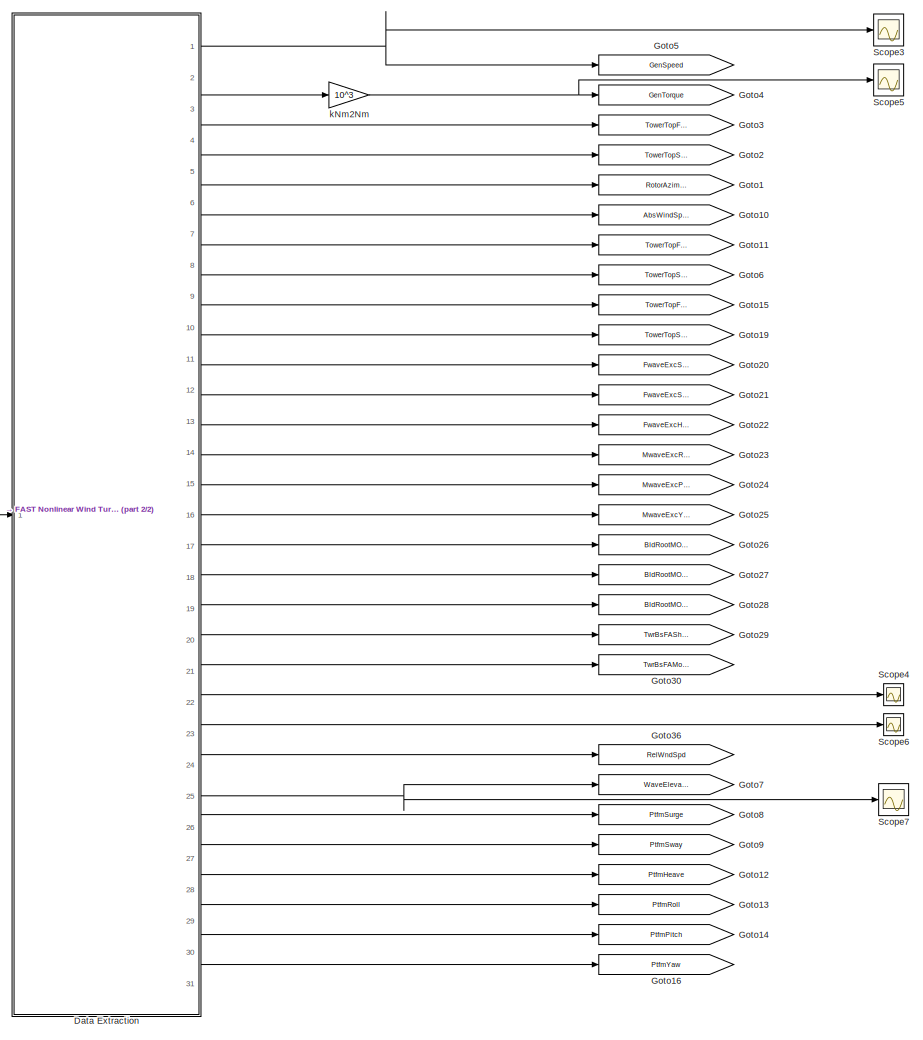
[diagram: root canvas - part 1/2, middle right region]
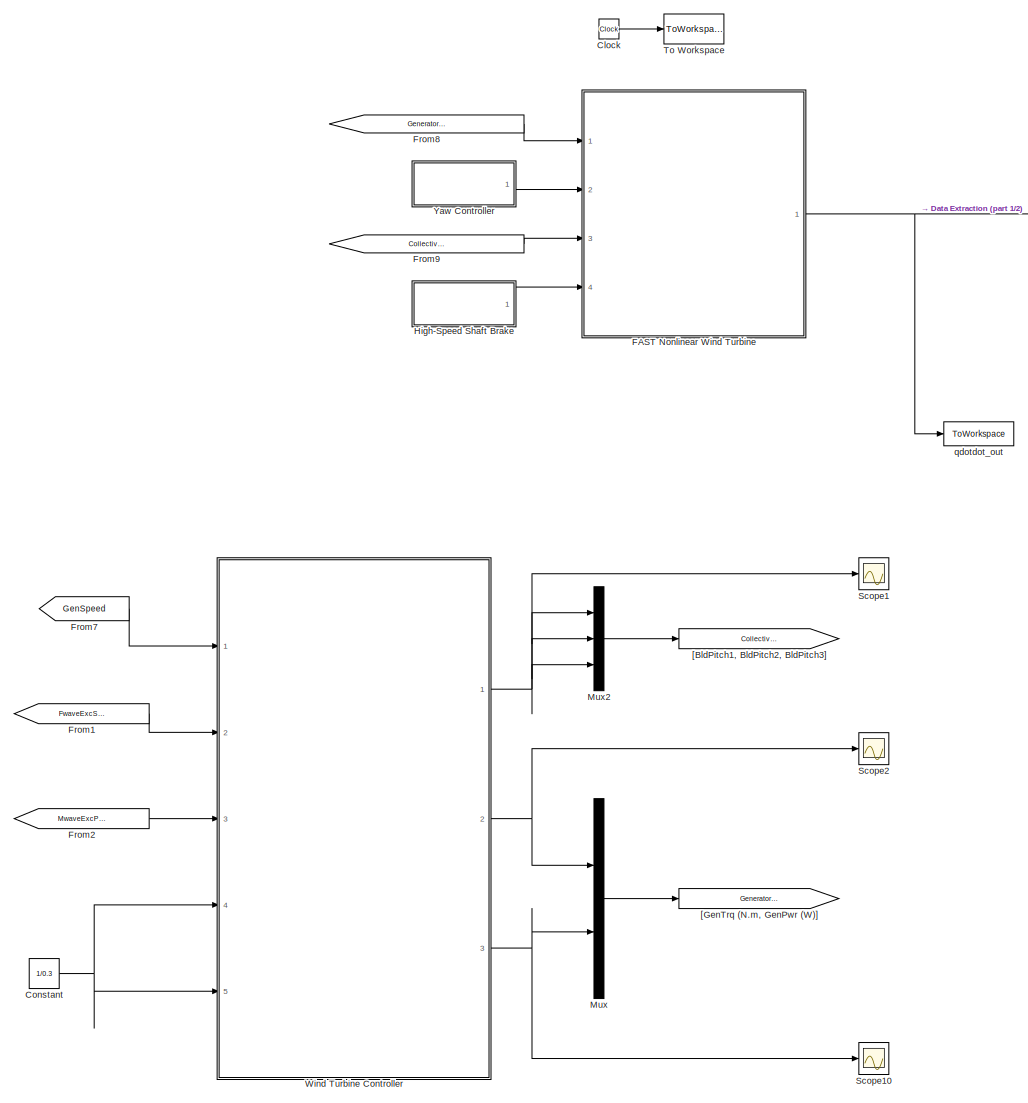
[diagram: root canvas - part 2/2, left side, full height]
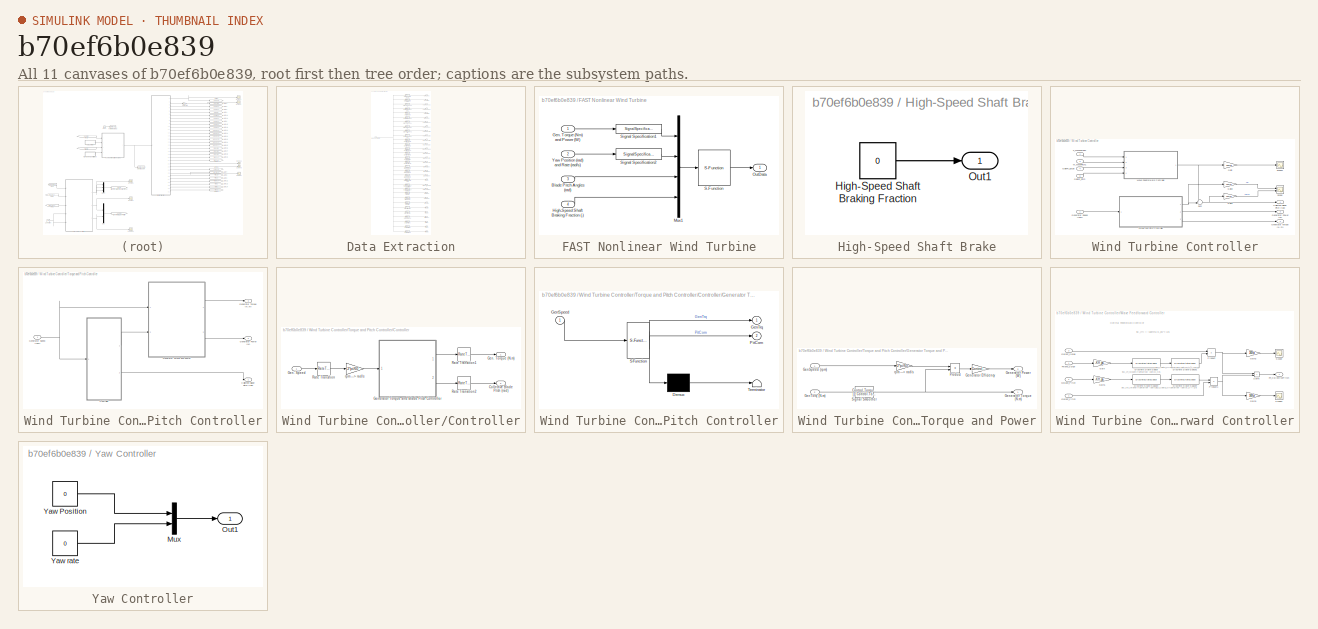
[diagram: thumbnail index - all 11 canvases of the model, root first then tree order]
MODEL slx_b70ef6b0e839
KIND model
CONFIG AbsTol = auto
CONFIG EnableMultiTasking = on
CONFIG FixedStep = Control.TimeStep
CONFIG MaxStep = DT
CONFIG MinStep = auto
CONFIG RelTol = 1e-3
CONFIG SampleTimeConstraint = Unconstrained
CONFIG SolverName = ode4
CONFIG StartTime = 0.0
CONFIG StopTime = TMax
BLOCK [Clock] Clock
BLOCK [Constant] Constant
  Value = 1/0.3
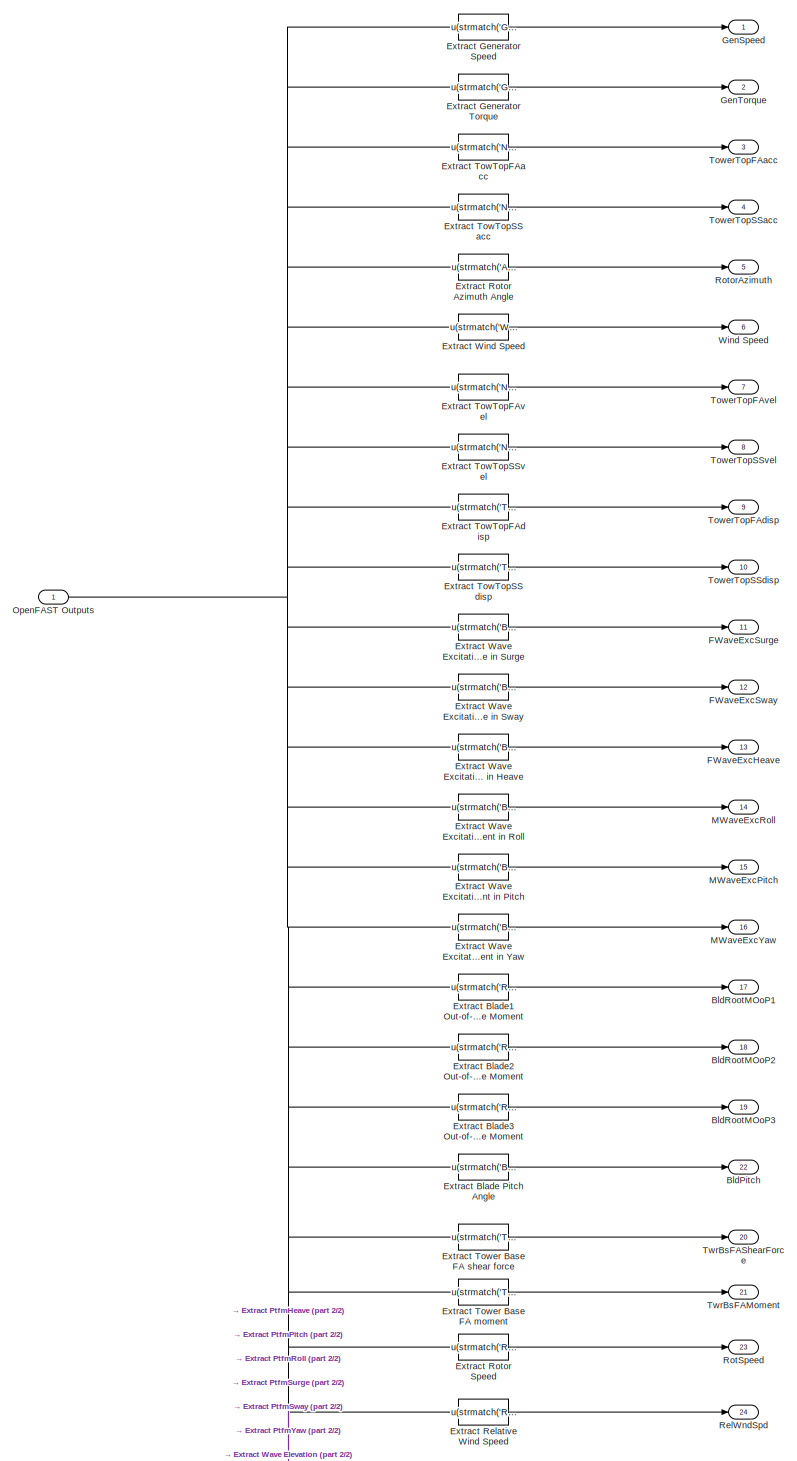
[diagram: Data Extraction - part 1/2, most of the canvas]
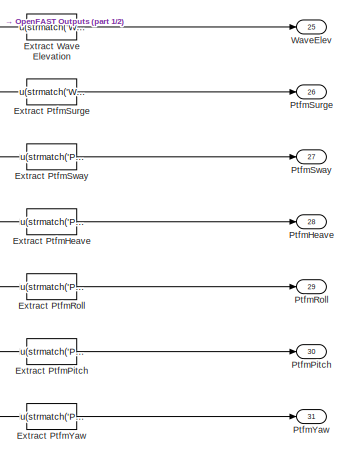
[diagram: Data Extraction - part 2/2, bottom right region]
BLOCK [SubSystem] Data Extraction
  Ports = [1, 31]
  RequestExecContextInheritance = off
BLOCK [Outport] Data Extraction/BldPitch
  Port = 22
BLOCK [Outport] Data Extraction/BldRootMOoP1
  Port = 17
BLOCK [Outport] Data Extraction/BldRootMOoP2
  Port = 18
BLOCK [Outport] Data Extraction/BldRootMOoP3
  Port = 19
BLOCK [Fcn] Data Extraction/Extract Blade Pitch Angle
  Expr = u(strmatch('BldPitch1',OutList))
BLOCK [Fcn] Data Extraction/Extract Blade1 Out-of-Plane Moment
  Expr = u(strmatch('RootMyc1',OutList))
BLOCK [Fcn] Data Extraction/Extract Blade2 Out-of-Plane Moment
  Expr = u(strmatch('RootMyc2',OutList))
BLOCK [Fcn] Data Extraction/Extract Blade3 Out-of-Plane Moment
  Expr = u(strmatch('RootMyc3',OutList))
BLOCK [Fcn] Data Extraction/Extract Generator Speed
  Expr = u(strmatch('GenSpeed',OutList))
BLOCK [Fcn] Data Extraction/Extract Generator Torque
  Expr = u(strmatch('GenTq',OutList))
BLOCK [Fcn] Data Extraction/Extract PtfmHeave
  Expr = u(strmatch('PtfmHeave',OutList))
BLOCK [Fcn] Data Extraction/Extract PtfmPitch
  Expr = u(strmatch('PtfmPitch',OutList))
BLOCK [Fcn] Data Extraction/Extract PtfmRoll
  Expr = u(strmatch('PtfmRoll',OutList))
BLOCK [Fcn] Data Extraction/Extract PtfmSurge
  Expr = u(strmatch('Wave1Elev',OutList))
BLOCK [Fcn] Data Extraction/Extract PtfmSway
  Expr = u(strmatch('PtfmSway',OutList))
BLOCK [Fcn] Data Extraction/Extract PtfmYaw
  Expr = u(strmatch('PtfmYaw',OutList))
BLOCK [Fcn] Data Extraction/Extract Relative Wind Speed
  Expr = u(strmatch('RtVAvgxh',OutList))
BLOCK [Fcn] Data Extraction/Extract Rotor Azimuth Angle
  Expr = u(strmatch('Azimuth',OutList))
BLOCK [Fcn] Data Extraction/Extract Rotor Speed
  Expr = u(strmatch('RotSpeed',OutList))
BLOCK [Fcn] Data Extraction/Extract TowTopFAacc
  Expr = u(strmatch('NcIMUTAxs',OutList))
BLOCK [Fcn] Data Extraction/Extract TowTopFAdisp
  Expr = u(strmatch('TTDspFA',OutList))
BLOCK [Fcn] Data Extraction/Extract TowTopFAvel
  Expr = u(strmatch('NcIMUTVxs',OutList))
BLOCK [Fcn] Data Extraction/Extract TowTopSSacc
  Expr = u(strmatch('NcIMUTAys',OutList))
BLOCK [Fcn] Data Extraction/Extract TowTopSSdisp
  Expr = u(strmatch('TTDspSS',OutList))
BLOCK [Fcn] Data Extraction/Extract TowTopSSvel
  Expr = u(strmatch('NcIMUTVys',OutList))
BLOCK [Fcn] Data Extraction/Extract Tower Base FA moment
  Commented = through
  Expr = u(strmatch('TwrBsMyt',OutList))
BLOCK [Fcn] Data Extraction/Extract Tower Base FA shear force
  Commented = through
  Expr = u(strmatch('TwrBsFxt',OutList))
BLOCK [Fcn] Data Extraction/Extract Wave Elevation
  Expr = u(strmatch('Wave1Elev',OutList))
BLOCK [Fcn] Data Extraction/Extract Wave Excitation Force in Heave
  Expr = u(strmatch('B1WvsFzi',OutList))
BLOCK [Fcn] Data Extraction/Extract Wave Excitation Force in Surge
  Expr = u(strmatch('B1WvsFxi',OutList))
BLOCK [Fcn] Data Extraction/Extract Wave Excitation Force in Sway
  Expr = u(strmatch('B1WvsFyi',OutList))
BLOCK [Fcn] Data Extraction/Extract Wave Excitation Moment in Pitch
  Expr = u(strmatch('B1WvsMyi',OutList))
BLOCK [Fcn] Data Extraction/Extract Wave Excitation Moment in Roll
  Expr = u(strmatch('B1WvsMxi',OutList))
BLOCK [Fcn] Data Extraction/Extract Wave Excitation Moment in Yaw
  Expr = u(strmatch('B1WvsMzi',OutList))
BLOCK [Fcn] Data Extraction/Extract Wind Speed
  Expr = u(strmatch('Wind1VelX',OutList))
BLOCK [Outport] Data Extraction/FWaveExcHeave
  Port = 13
BLOCK [Outport] Data Extraction/FWaveExcSurge
  Port = 11
BLOCK [Outport] Data Extraction/FWaveExcSway
  Port = 12
BLOCK [Outport] Data Extraction/GenSpeed
BLOCK [Outport] Data Extraction/GenTorque
  Port = 2
BLOCK [Outport] Data Extraction/MWaveExcPitch
  Port = 15
BLOCK [Outport] Data Extraction/MWaveExcRoll
  Port = 14
BLOCK [Outport] Data Extraction/MWaveExcYaw
  Port = 16
BLOCK [Inport] Data Extraction/OpenFAST Outputs
BLOCK [Outport] Data Extraction/PtfmHeave
  Port = 28
BLOCK [Outport] Data Extraction/PtfmPitch
  Port = 30
BLOCK [Outport] Data Extraction/PtfmRoll
  Port = 29
BLOCK [Outport] Data Extraction/PtfmSurge
  Port = 26
BLOCK [Outport] Data Extraction/PtfmSway
  Port = 27
BLOCK [Outport] Data Extraction/PtfmYaw
  Port = 31
BLOCK [Outport] Data Extraction/RelWndSpd
  Port = 24
BLOCK [Outport] Data Extraction/RotSpeed
  Port = 23
BLOCK [Outport] Data Extraction/RotorAzimuth
  Port = 5
BLOCK [Outport] Data Extraction/TowerTopFAacc
  Port = 3
BLOCK [Outport] Data Extraction/TowerTopFAdisp
  Port = 9
BLOCK [Outport] Data Extraction/TowerTopFAvel
  Port = 7
BLOCK [Outport] Data Extraction/TowerTopSSacc
  Port = 4
BLOCK [Outport] Data Extraction/TowerTopSSdisp
  Port = 10
BLOCK [Outport] Data Extraction/TowerTopSSvel
  Port = 8
BLOCK [Outport] Data Extraction/TwrBsFAMoment
  Port = 21
BLOCK [Outport] Data Extraction/TwrBsFAShearForce
  Port = 20
BLOCK [Outport] Data Extraction/WaveElev
  Port = 25
BLOCK [Outport] Data Extraction/Wind Speed
  Port = 6
BLOCK [SubSystem] FAST Nonlinear Wind Turbine
  Ports = [4, 1]
  RequestExecContextInheritance = off
BLOCK [Inport] FAST Nonlinear Wind Turbine/Blade Pitch Angles (rad)
  Port = 3
BLOCK [Inport] FAST Nonlinear Wind Turbine/Gen. Torque (Nm) and Power (W)
BLOCK [Inport] FAST Nonlinear Wind Turbine/High-Speed Shaft Braking Fraction (-)
  Port = 4
BLOCK [Mux] FAST Nonlinear Wind Turbine/Mux1
  DisplayOption = bar
  Ports = [4, 1]
BLOCK [Outport] FAST Nonlinear Wind Turbine/OutData
BLOCK [S-Function] FAST Nonlinear Wind Turbine/S-Function
  EnableBusSupport = off
  FunctionName = FAST_SFunc
  Parameters = FAST_InputFileName, TMax, 0
  Ports = [1, 1]
  SFcnIsStateOwnerBlock = off
  SFunctionDeploymentMode = off
BLOCK [SignalSpecification] FAST Nonlinear Wind Turbine/Signal Specification1
  Dimensions = 2
  OutDataTypeStr = double
  SignalType = real
BLOCK [SignalSpecification] FAST Nonlinear Wind Turbine/Signal Specification2
  Dimensions = 2
  OutDataTypeStr = double
  SignalType = real
BLOCK [Inport] FAST Nonlinear Wind Turbine/Yaw Position (rad) and Rate (rad//s)
  Port = 2
BLOCK [From] From1
  GotoTag = FwaveExcSurge
BLOCK [From] From2
  GotoTag = MwaveExcPitch
BLOCK [From] From7
  GotoTag = GenSpeed
BLOCK [From] From8
  GotoTag = Generator_Torque_Power
BLOCK [From] From9
  GotoTag = Collective_Pitch_Vector
BLOCK [Goto] Goto1
  GotoTag = RotorAzimuth
BLOCK [Goto] Goto10
  GotoTag = AbsWindSpeed
BLOCK [Goto] Goto11
  GotoTag = TowerTopFAvel
BLOCK [Goto] Goto12
  GotoTag = PtfmHeave
BLOCK [Goto] Goto13
  GotoTag = PtfmRoll
BLOCK [Goto] Goto14
  GotoTag = PtfmPitch
BLOCK [Goto] Goto15
  GotoTag = TowerTopFAdisp
BLOCK [Goto] Goto16
  GotoTag = PtfmYaw
BLOCK [Goto] Goto19
  GotoTag = TowerTopSSdisp
BLOCK [Goto] Goto2
  GotoTag = TowerTopSSacc
BLOCK [Goto] Goto20
  GotoTag = FwaveExcSurge
BLOCK [Goto] Goto21
  GotoTag = FwaveExcSway
BLOCK [Goto] Goto22
  GotoTag = FwaveExcHeave
BLOCK [Goto] Goto23
  GotoTag = MwaveExcRoll
BLOCK [Goto] Goto24
  GotoTag = MwaveExcPitch
BLOCK [Goto] Goto25
  GotoTag = MwaveExcYaw
BLOCK [Goto] Goto26
  GotoTag = BldRootMOoP1
BLOCK [Goto] Goto27
  GotoTag = BldRootMOoP2
BLOCK [Goto] Goto28
  GotoTag = BldRootMOoP3
BLOCK [Goto] Goto29
  GotoTag = TwrBsFAShearForce
BLOCK [Goto] Goto3
  GotoTag = TowerTopFAacc
BLOCK [Goto] Goto30
  GotoTag = TwrBsFAMoment
BLOCK [Goto] Goto36
  GotoTag = RelWndSpd
BLOCK [Goto] Goto4
  GotoTag = GenTorque
BLOCK [Goto] Goto5
  GotoTag = GenSpeed
BLOCK [Goto] Goto6
  GotoTag = TowerTopSSvel
BLOCK [Goto] Goto7
  GotoTag = WaveElevation
BLOCK [Goto] Goto8
  GotoTag = PtfmSurge
BLOCK [Goto] Goto9
  GotoTag = PtfmSway
BLOCK [SubSystem] High-Speed Shaft Brake
  Ports = [0, 1]
  RequestExecContextInheritance = off
BLOCK [Constant] High-Speed Shaft Brake/High-Speed Shaft Braking Fraction
  Value = 0
BLOCK [Outport] High-Speed Shaft Brake/Out1
BLOCK [Mux] Mux
  DisplayOption = bar
  Inputs = 2
  Ports = [2, 1]
BLOCK [Mux] Mux2
  DisplayOption = bar
  Inputs = 3
  Ports = [3, 1]
BLOCK [Scope] Scope1
  Floating = off
  NumInputPorts = 1
  Ports = [1]
  ScopeSpecificationString = Simulink.scopes.TimeScopeBlockCfg('CurrentConfiguration', extmgr.ConfigurationSet(extmgr.Configuration('Core','General UI',true),extmgr.Configuration('Core','Source UI',true),extmgr.Configuration('Sources','WiredSimulink',true,'DataLoggingVariableName','ScopeData1'),extmgr.Configuration('Visuals','Time Domain',true,'SerializedDisplays',{struct('MinYLimReal','-0.02717','MaxYLimReal','0.24455','YLab...<+1409ch>
BLOCK [Scope] Scope10
  Floating = off
  NumInputPorts = 1
  Ports = [1]
  ScopeSpecificationString = Simulink.scopes.TimeScopeBlockCfg('CurrentConfiguration', extmgr.ConfigurationSet(extmgr.Configuration('Core','General UI',true),extmgr.Configuration('Core','Source UI',true),extmgr.Configuration('Sources','WiredSimulink',true,'DataLoggingVariableName','ScopeData3'),extmgr.Configuration('Visuals','Time Domain',true,'SerializedDisplays',{struct('MinYLimReal','-778035.1067','MaxYLimReal','7002315.96...<+1476ch>
BLOCK [Scope] Scope2
  Floating = off
  NumInputPorts = 1
  Ports = [1]
  ScopeSpecificationString = Simulink.scopes.TimeScopeBlockCfg('CurrentConfiguration', extmgr.ConfigurationSet(extmgr.Configuration('Core','General UI',true),extmgr.Configuration('Core','Source UI',true),extmgr.Configuration('Sources','WiredSimulink',true,'DataLoggingVariableName','ScopeData2'),extmgr.Configuration('Visuals','Time Domain',true,'SerializedDisplays',{struct('MinYLimReal','-0.047','MaxYLimReal','0.423','YLabelRe...<+1397ch>
BLOCK [Scope] Scope3
  Floating = off
  NumInputPorts = 1
  Ports = [1]
  ScopeSpecificationString = Simulink.scopes.TimeScopeBlockCfg('CurrentConfiguration', extmgr.ConfigurationSet(extmgr.Configuration('Core','General UI',true),extmgr.Configuration('Core','Source UI',true),extmgr.Configuration('Sources','WiredSimulink',true,'DataLoggingVariableName','ScopeData1'),extmgr.Configuration('Visuals','Time Domain',true,'SerializedDisplays',{struct('MinYLimReal','700.35698','MaxYLimReal','1905.20393','...<+1446ch>
BLOCK [Scope] Scope4
  Floating = off
  NumInputPorts = 1
  Ports = [1]
  ScopeSpecificationString = Simulink.scopes.TimeScopeBlockCfg('CurrentConfiguration', extmgr.ConfigurationSet(extmgr.Configuration('Core','General UI',true),extmgr.Configuration('Core','Source UI',true),extmgr.Configuration('Sources','WiredSimulink',true,'DataLoggingVariableName','ScopeData3'),extmgr.Configuration('Visuals','Time Domain',true,'SerializedDisplays',{struct('MinYLimReal','-1.59515','MaxYLimReal','14.35633','YLa...<+1461ch>
BLOCK [Scope] Scope5
  Floating = off
  NumInputPorts = 1
  Ports = [1]
  ScopeSpecificationString = Simulink.scopes.TimeScopeBlockCfg('CurrentConfiguration', extmgr.ConfigurationSet(extmgr.Configuration('Core','General UI',true),extmgr.Configuration('Core','Source UI',true),extmgr.Configuration('Sources','WiredSimulink',true,'DataLoggingVariableName','ScopeData1'),extmgr.Configuration('Visuals','Time Domain',true,'SerializedDisplays',{struct('MinYLimReal','-5681.27775','MaxYLimReal','51131.49977...<+1443ch>
BLOCK [Scope] Scope6
  Floating = off
  NumInputPorts = 1
  Ports = [1]
  ScopeSpecificationString = Simulink.scopes.TimeScopeBlockCfg('CurrentConfiguration', extmgr.ConfigurationSet(extmgr.Configuration('Core','General UI',true),extmgr.Configuration('Core','Source UI',true),extmgr.Configuration('Sources','WiredSimulink',true,'DataLoggingVariableName','ScopeData2'),extmgr.Configuration('Visuals','Time Domain',true,'SerializedDisplays',{struct('MinYLimReal','10.22804','MaxYLimReal','15.56446','YLa...<+1465ch>
BLOCK [Scope] Scope7
  Floating = off
  NumInputPorts = 1
  Ports = [1]
  ScopeSpecificationString = Simulink.scopes.TimeScopeBlockCfg('CurrentConfiguration', extmgr.ConfigurationSet(extmgr.Configuration('Core','General UI',true),extmgr.Configuration('Core','Source UI',true),extmgr.Configuration('Sources','WiredSimulink',true,'DataLoggingVariableName','ScopeData1'),extmgr.Configuration('Visuals','Time Domain',true,'SerializedDisplays',{struct('MinYLimReal','-1.91621','MaxYLimReal','2.11644','YLab...<+1430ch>
BLOCK [ToWorkspace] To Workspace
  MaxDataPoints = inf
  Ports = [1]
  SampleTime = -1
  VariableName = Time
BLOCK [SubSystem] Wind Turbine Controller
  Ports = [5, 3]
  RequestExecContextInheritance = off
BLOCK [Outport] Wind Turbine Controller/ Collective Blade Pitch (rad)
BLOCK [Inport] Wind Turbine Controller/F_WaveSurge1
  Port = 2
BLOCK [Gain] Wind Turbine Controller/Gain
  Gain = 180/pi
BLOCK [Gain] Wind Turbine Controller/Gain1
  Gain = 180/pi
BLOCK [Gain] Wind Turbine Controller/Gain2
  Gain = 180/pi
BLOCK [Inport] Wind Turbine Controller/GainFF_Pitch
  Port = 5
  PortDimensions = 1
  SignalType = real
BLOCK [Inport] Wind Turbine Controller/GainFF_Surge
  Port = 4
  PortDimensions = 1
  SignalType = real
BLOCK [Outport] Wind Turbine Controller/Generator Power (W)
  Port = 3
BLOCK [Inport] Wind Turbine Controller/Generator Speed (rpm)
BLOCK [Outport] Wind Turbine Controller/Generator Torque (N.m)
  Port = 2
BLOCK [Inport] Wind Turbine Controller/M_WavePitch1
  Port = 3
BLOCK [Scope] Wind Turbine Controller/Scope
  Floating = off
  NumInputPorts = 2
  Ports = [2]
  ScopeSpecificationString = Simulink.scopes.TimeScopeBlockCfg('CurrentConfiguration', extmgr.ConfigurationSet(extmgr.Configuration('Core','General UI',true),extmgr.Configuration('Core','Source UI',true),extmgr.Configuration('Sources','WiredSimulink',true,'DataLoggingVariableName','ScopeData1'),extmgr.Configuration('Visuals','Time Domain',true,'SerializedDisplays',{struct('MinYLimReal','-1.55326','MaxYLimReal','13.97936','YLa...<+1413ch>
BLOCK [Scope] Wind Turbine Controller/Scope1
  Floating = off
  NumInputPorts = 1
  Ports = [1]
  ScopeSpecificationString = Simulink.scopes.TimeScopeBlockCfg('CurrentConfiguration', extmgr.ConfigurationSet(extmgr.Configuration('Core','General UI',true),extmgr.Configuration('Core','Source UI',true),extmgr.Configuration('Sources','WiredSimulink',true,'DataLoggingVariableName','ScopeData2'),extmgr.Configuration('Visuals','Time Domain',true,'SerializedDisplays',{struct('MinYLimReal','-1.00000','MaxYLimReal','1.00000','YLab...<+1388ch>
BLOCK [Sum] Wind Turbine Controller/Sum
  Inputs = ++|
  Ports = [2, 1]
BLOCK [SubSystem] Wind Turbine Controller/Torque and Pitch Controller
  Ports = [1, 3]
  RequestExecContextInheritance = off
BLOCK [Outport] Wind Turbine Controller/Torque and Pitch Controller/ Collective Blade Pitch (rad)
BLOCK [SubSystem] Wind Turbine Controller/Torque and Pitch Controller/Controller
  Ports = [1, 2]
  RequestExecContextInheritance = off
BLOCK [Outport] Wind Turbine Controller/Torque and Pitch Controller/Controller/Collective Blade Pitch (rad)
  Port = 2
BLOCK [Inport] Wind Turbine Controller/Torque and Pitch Controller/Controller/Gen. Speed
BLOCK [Outport] Wind Turbine Controller/Torque and Pitch Controller/Controller/Gen. Torque (N.m)
BLOCK [SubSystem] Wind Turbine Controller/Torque and Pitch Controller/Controller/Generator Torque and Blade Pitch Controller
  ErrorFcn = Stateflow.Translate.translate
  PermitHierarchicalResolution = ExplicitOnly
  Ports = [1, 2]
  RequestExecContextInheritance = off
  SFBlockType = MATLAB Function
  TreatAsAtomicUnit = on
BLOCK [Demux] Wind Turbine Controller/Torque and Pitch Controller/Controller/Generator Torque and Blade Pitch Controller/ Demux 
  Outputs = 1
  Ports = [1, 1]
BLOCK [S-Function] Wind Turbine Controller/Torque and Pitch Controller/Controller/Generator Torque and Blade Pitch Controller/ SFunction 
  EnableBusSupport = on
  FunctionName = sf_sfun
  Parameters = Control
  PortCounts = [1 3]
  Ports = [1, 3]
  SFcnIsStateOwnerBlock = off
  SFunctionDeploymentMode = off
  Tag = Stateflow S-Function 16
BLOCK [Terminator] Wind Turbine Controller/Torque and Pitch Controller/Controller/Generator Torque and Blade Pitch Controller/ Terminator 
BLOCK [Inport] Wind Turbine Controller/Torque and Pitch Controller/Controller/Generator Torque and Blade Pitch Controller/GenSpeed
BLOCK [Outport] Wind Turbine Controller/Torque and Pitch Controller/Controller/Generator Torque and Blade Pitch Controller/GenTrq
BLOCK [Outport] Wind Turbine Controller/Torque and Pitch Controller/Controller/Generator Torque and Blade Pitch Controller/PitCom
  Port = 2
BLOCK [RateTransition] Wind Turbine Controller/Torque and Pitch Controller/Controller/Rate Transition
BLOCK [RateTransition] Wind Turbine Controller/Torque and Pitch Controller/Controller/Rate Transition1
BLOCK [RateTransition] Wind Turbine Controller/Torque and Pitch Controller/Controller/Rate Transition2
BLOCK [Gain] Wind Turbine Controller/Torque and Pitch Controller/Controller/rpm ---> rad//s
  Gain = 2*pi/60
BLOCK [Outport] Wind Turbine Controller/Torque and Pitch Controller/Generator Power (W)
  Port = 2
BLOCK [Inport] Wind Turbine Controller/Torque and Pitch Controller/Generator Speed (rpm)
BLOCK [Outport] Wind Turbine Controller/Torque and Pitch Controller/Generator Torque (N.m)
  Port = 3
BLOCK [SubSystem] Wind Turbine Controller/Torque and Pitch Controller/Generator Torque and Power
  Ports = [2, 2]
  RequestExecContextInheritance = off
BLOCK [Inport] Wind Turbine Controller/Torque and Pitch Controller/Generator Torque and Power/GenSpeed (rpm)
BLOCK [Inport] Wind Turbine Controller/Torque and Pitch Controller/Generator Torque and Power/GenTorq (N.m)
  Port = 2
BLOCK [Gain] Wind Turbine Controller/Torque and Pitch Controller/Generator Torque and Power/Generator Efficiency
  Gain = Control.Torque.GenEffec
BLOCK [Outport] Wind Turbine Controller/Torque and Pitch Controller/Generator Torque and Power/Generator Power (W)
  Port = 2
BLOCK [Outport] Wind Turbine Controller/Torque and Pitch Controller/Generator Torque and Power/Generator Torque (N.m)
BLOCK [Product] Wind Turbine Controller/Torque and Pitch Controller/Generator Torque and Power/Product
  Ports = [2, 1]
BLOCK [TransferFcn] Wind Turbine Controller/Torque and Pitch Controller/Generator Torque and Power/Signal Smoother
  Denominator = [1 Control.Torque.SigSmoother]
  Numerator = Control.Torque.SigSmoother
BLOCK [Gain] Wind Turbine Controller/Torque and Pitch Controller/Generator Torque and Power/rpm ---> rad//s
  Gain = 2*pi/60
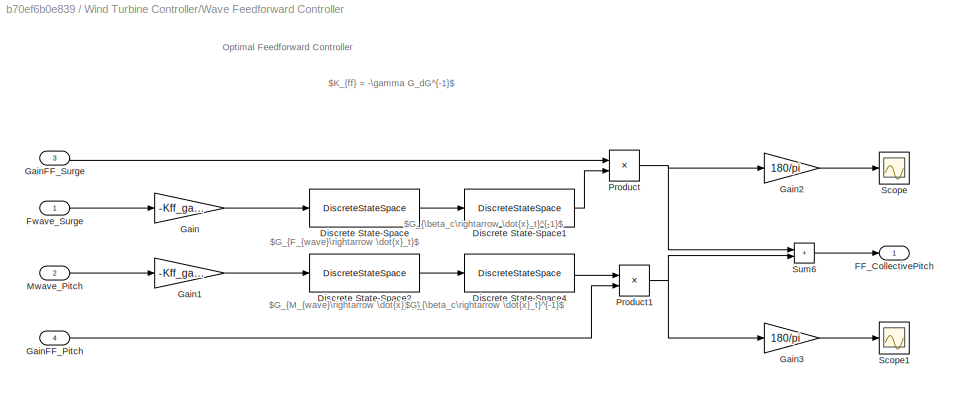
BLOCK [SubSystem] Wind Turbine Controller/Wave Feedforward Controller
  Ports = [4, 1]
  RequestExecContextInheritance = off
BLOCK [DiscreteStateSpace] Wind Turbine Controller/Wave Feedforward Controller/Discrete State-Space
  A = Gd_Fwave.A
  B = Gd_Fwave.B
  C = Gd_Fwave.C
  D = Gd_Fwave.D
  SampleTime = Control.TimeStep
BLOCK [DiscreteStateSpace] Wind Turbine Controller/Wave Feedforward Controller/Discrete State-Space1
  A = InvGp.A
  B = InvGp.B
  C = InvGp.C
  D = InvGp.D
  SampleTime = Control.TimeStep
BLOCK [DiscreteStateSpace] Wind Turbine Controller/Wave Feedforward Controller/Discrete State-Space2
  A = Gd_Mwave.A
  B = Gd_Mwave.B
  C = Gd_Mwave.C
  D = Gd_Mwave.D
  SampleTime = Control.TimeStep
BLOCK [DiscreteStateSpace] Wind Turbine Controller/Wave Feedforward Controller/Discrete State-Space4
  A = InvGp.A
  B = InvGp.B
  C = InvGp.C
  D = InvGp.D
  SampleTime = Control.TimeStep
BLOCK [Outport] Wind Turbine Controller/Wave Feedforward Controller/FF_CollectivePitch
BLOCK [Inport] Wind Turbine Controller/Wave Feedforward Controller/Fwave_Surge
BLOCK [Gain] Wind Turbine Controller/Wave Feedforward Controller/Gain
  Gain = -Kff_gain
BLOCK [Gain] Wind Turbine Controller/Wave Feedforward Controller/Gain1
  Gain = -Kff_gain
BLOCK [Gain] Wind Turbine Controller/Wave Feedforward Controller/Gain2
  Gain = 180/pi
BLOCK [Gain] Wind Turbine Controller/Wave Feedforward Controller/Gain3
  Gain = 180/pi
BLOCK [Inport] Wind Turbine Controller/Wave Feedforward Controller/GainFF_Pitch
  Port = 4
  PortDimensions = 1
  SignalType = real
BLOCK [Inport] Wind Turbine Controller/Wave Feedforward Controller/GainFF_Surge
  Port = 3
  PortDimensions = 1
  SignalType = real
BLOCK [Inport] Wind Turbine Controller/Wave Feedforward Controller/Mwave_Pitch
  Port = 2
BLOCK [Product] Wind Turbine Controller/Wave Feedforward Controller/Product
  Ports = [2, 1]
BLOCK [Product] Wind Turbine Controller/Wave Feedforward Controller/Product1
  Ports = [2, 1]
BLOCK [Scope] Wind Turbine Controller/Wave Feedforward Controller/Scope
  Floating = off
  NumInputPorts = 1
  Ports = [1]
  ScopeSpecificationString = Simulink.scopes.TimeScopeBlockCfg('CurrentConfiguration', extmgr.ConfigurationSet(extmgr.Configuration('Core','General UI',true),extmgr.Configuration('Core','Source UI',true),extmgr.Configuration('Sources','WiredSimulink',true,'DataLoggingVariableName','ScopeData1'),extmgr.Configuration('Visuals','Time Domain',true),extmgr.Configuration('Tools','Plot Navigation',true),extmgr.Configuration('Tools',...<+58ch>
BLOCK [Scope] Wind Turbine Controller/Wave Feedforward Controller/Scope1
  Floating = off
  NumInputPorts = 1
  Ports = [1]
  ScopeSpecificationString = Simulink.scopes.TimeScopeBlockCfg('CurrentConfiguration', extmgr.ConfigurationSet(extmgr.Configuration('Core','General UI',true),extmgr.Configuration('Core','Source UI',true),extmgr.Configuration('Sources','WiredSimulink',true,'DataLoggingVariableName','ScopeData2'),extmgr.Configuration('Visuals','Time Domain',true),extmgr.Configuration('Tools','Plot Navigation',true),extmgr.Configuration('Tools',...<+40ch>
BLOCK [Sum] Wind Turbine Controller/Wave Feedforward Controller/Sum6
  IconShape = rectangular
  Ports = [2, 1]
BLOCK [SubSystem] Yaw Controller
  Ports = [0, 1]
  RequestExecContextInheritance = off
BLOCK [Mux] Yaw Controller/Mux
  DisplayOption = bar
  Inputs = 2
  Ports = [2, 1]
BLOCK [Outport] Yaw Controller/Out1
BLOCK [Constant] Yaw Controller/Yaw Position
  Value = 0
BLOCK [Constant] Yaw Controller/Yaw rate
  Value = 0
BLOCK [Goto] [BldPitch1, BldPitch2, BldPitch3]
  GotoTag = Collective_Pitch_Vector
BLOCK [Goto] [GenTrq (N.m, GenPwr (W)]
  GotoTag = Generator_Torque_Power
BLOCK [Gain] kNm2Nm
  Gain = 10^3
BLOCK [ToWorkspace] qdotdot_out
  MaxDataPoints = inf
  Ports = [1]
  SampleTime = -1
  VariableName = OutData
ANNOTATION Wind Turbine Controller/Wave Feedforward Controller: Optimal Feedforward Controller
ANNOTATION Wind Turbine Controller/Wave Feedforward Controller: $G_{F_{wave}\rightarrow \dot{x}_t}$
ANNOTATION Wind Turbine Controller/Wave Feedforward Controller: $G_{M_{wave}\rightarrow \dot{x}_t}$
ANNOTATION Wind Turbine Controller/Wave Feedforward Controller: $G_{\beta_c\rightarrow \dot{x}_t}^{-1}$
ANNOTATION Wind Turbine Controller/Wave Feedforward Controller: $K_{ff} = -\gamma G_dG^{-1}$
LINE Clock:1 -> To Workspace:1
NET Constant:1 -> Wind Turbine Controller:4, Wind Turbine Controller:5
LINE Data Extraction/Extract Blade Pitch Angle:1 -> Data Extraction/BldPitch:1
LINE Data Extraction/Extract Blade1 Out-of-Plane Moment:1 -> Data Extraction/BldRootMOoP1:1
LINE Data Extraction/Extract Blade2 Out-of-Plane Moment:1 -> Data Extraction/BldRootMOoP2:1
LINE Data Extraction/Extract Blade3 Out-of-Plane Moment:1 -> Data Extraction/BldRootMOoP3:1
LINE Data Extraction/Extract Generator Speed:1 -> Data Extraction/GenSpeed:1
LINE Data Extraction/Extract Generator Torque:1 -> Data Extraction/GenTorque:1
LINE Data Extraction/Extract PtfmHeave:1 -> Data Extraction/PtfmHeave:1
LINE Data Extraction/Extract PtfmPitch:1 -> Data Extraction/PtfmPitch:1
LINE Data Extraction/Extract PtfmRoll:1 -> Data Extraction/PtfmRoll:1
LINE Data Extraction/Extract PtfmSurge:1 -> Data Extraction/PtfmSurge:1
LINE Data Extraction/Extract PtfmSway:1 -> Data Extraction/PtfmSway:1
LINE Data Extraction/Extract PtfmYaw:1 -> Data Extraction/PtfmYaw:1
LINE Data Extraction/Extract Relative Wind Speed:1 -> Data Extraction/RelWndSpd:1
LINE Data Extraction/Extract Rotor Azimuth Angle:1 -> Data Extraction/RotorAzimuth:1
LINE Data Extraction/Extract Rotor Speed:1 -> Data Extraction/RotSpeed:1
LINE Data Extraction/Extract TowTopFAacc:1 -> Data Extraction/TowerTopFAacc:1
LINE Data Extraction/Extract TowTopFAdisp:1 -> Data Extraction/TowerTopFAdisp:1
LINE Data Extraction/Extract TowTopFAvel:1 -> Data Extraction/TowerTopFAvel:1
LINE Data Extraction/Extract TowTopSSacc:1 -> Data Extraction/TowerTopSSacc:1
LINE Data Extraction/Extract TowTopSSdisp:1 -> Data Extraction/TowerTopSSdisp:1
LINE Data Extraction/Extract TowTopSSvel:1 -> Data Extraction/TowerTopSSvel:1
LINE Data Extraction/Extract Tower Base FA moment:1 -> Data Extraction/TwrBsFAMoment:1
LINE Data Extraction/Extract Tower Base FA shear force:1 -> Data Extraction/TwrBsFAShearForce:1
LINE Data Extraction/Extract Wave Elevation:1 -> Data Extraction/WaveElev:1
LINE Data Extraction/Extract Wave Excitation Force in Heave:1 -> Data Extraction/FWaveExcHeave:1
LINE Data Extraction/Extract Wave Excitation Force in Surge:1 -> Data Extraction/FWaveExcSurge:1
LINE Data Extraction/Extract Wave Excitation Force in Sway:1 -> Data Extraction/FWaveExcSway:1
LINE Data Extraction/Extract Wave Excitation Moment in Pitch:1 -> Data Extraction/MWaveExcPitch:1
LINE Data Extraction/Extract Wave Excitation Moment in Roll:1 -> Data Extraction/MWaveExcRoll:1
LINE Data Extraction/Extract Wave Excitation Moment in Yaw:1 -> Data Extraction/MWaveExcYaw:1
LINE Data Extraction/Extract Wind Speed:1 -> Data Extraction/Wind Speed:1
NET Data Extraction/OpenFAST Outputs:1 -> Data Extraction/Extract Blade Pitch Angle:1, Data Extraction/Extract Blade1 Out-of-Plane Moment:1, Data Extraction/Extract Blade2 Out-of-Plane Moment:1, Data Extraction/Extract Blade3 Out-of-Plane Moment:1, Data Extraction/Extract Generator Speed:1, Data Extraction/Extract Generator Torque:1, Data Extraction/Extract PtfmHeave:1, Data Extraction/Extract PtfmPitch:1, Data Extraction/Extract PtfmRoll:1, Data Extraction/Extract PtfmSurge:1, Data Extraction/Extract PtfmSway:1, Data Extraction/Extract PtfmYaw:1, Data Extraction/Extract Relative Wind Speed:1, Data Extraction/Extract Rotor Azimuth Angle:1, Data Extraction/Extract Rotor Speed:1, Data Extraction/Extract TowTopFAacc:1, Data Extraction/Extract TowTopFAdisp:1, Data Extraction/Extract TowTopFAvel:1, Data Extraction/Extract TowTopSSacc:1, Data Extraction/Extract TowTopSSdisp:1, Data Extraction/Extract TowTopSSvel:1, Data Extraction/Extract Tower Base FA moment:1, Data Extraction/Extract Tower Base FA shear force:1, Data Extraction/Extract Wave Elevation:1, Data Extraction/Extract Wave Excitation Force in Heave:1, Data Extraction/Extract Wave Excitation Force in Surge:1, Data Extraction/Extract Wave Excitation Force in Sway:1, Data Extraction/Extract Wave Excitation Moment in Pitch:1, Data Extraction/Extract Wave Excitation Moment in Roll:1, Data Extraction/Extract Wave Excitation Moment in Yaw:1, Data Extraction/Extract Wind Speed:1
NET Data Extraction:1 -> Goto5:1, Scope3:1
LINE Data Extraction:10 -> Goto19:1
LINE Data Extraction:11 -> Goto20:1
LINE Data Extraction:12 -> Goto21:1
LINE Data Extraction:13 -> Goto22:1
LINE Data Extraction:14 -> Goto23:1
LINE Data Extraction:15 -> Goto24:1
LINE Data Extraction:16 -> Goto25:1
LINE Data Extraction:17 -> Goto26:1
LINE Data Extraction:18 -> Goto27:1
LINE Data Extraction:19 -> Goto28:1
LINE Data Extraction:2 -> kNm2Nm:1
LINE Data Extraction:20 -> Goto29:1
LINE Data Extraction:21 -> Goto30:1
LINE Data Extraction:22 -> Scope4:1
LINE Data Extraction:23 -> Scope6:1
LINE Data Extraction:24 -> Goto36:1
NET Data Extraction:25 -> Goto7:1, Scope7:1
LINE Data Extraction:26 -> Goto8:1
LINE Data Extraction:27 -> Goto9:1
LINE Data Extraction:28 -> Goto12:1
LINE Data Extraction:29 -> Goto13:1
LINE Data Extraction:3 -> Goto3:1
LINE Data Extraction:30 -> Goto14:1
LINE Data Extraction:31 -> Goto16:1
LINE Data Extraction:4 -> Goto2:1
LINE Data Extraction:5 -> Goto1:1
LINE Data Extraction:6 -> Goto10:1
LINE Data Extraction:7 -> Goto11:1
LINE Data Extraction:8 -> Goto6:1
LINE Data Extraction:9 -> Goto15:1
LINE FAST Nonlinear Wind Turbine/Blade Pitch Angles (rad):1 -> FAST Nonlinear Wind Turbine/Mux1:3
LINE FAST Nonlinear Wind Turbine/Gen. Torque (Nm) and Power (W):1 -> FAST Nonlinear Wind Turbine/Signal Specification1:1
LINE FAST Nonlinear Wind Turbine/High-Speed Shaft Braking Fraction (-):1 -> FAST Nonlinear Wind Turbine/Mux1:4
LINE FAST Nonlinear Wind Turbine/Mux1:1 -> FAST Nonlinear Wind Turbine/S-Function:1
LINE FAST Nonlinear Wind Turbine/S-Function:1 -> FAST Nonlinear Wind Turbine/OutData:1
LINE FAST Nonlinear Wind Turbine/Signal Specification1:1 -> FAST Nonlinear Wind Turbine/Mux1:1
LINE FAST Nonlinear Wind Turbine/Signal Specification2:1 -> FAST Nonlinear Wind Turbine/Mux1:2
LINE FAST Nonlinear Wind Turbine/Yaw Position (rad) and Rate (rad//s):1 -> FAST Nonlinear Wind Turbine/Signal Specification2:1
NET FAST Nonlinear Wind Turbine:1 -> Data Extraction:1, qdotdot_out:1
LINE From1:1 -> Wind Turbine Controller:2
LINE From2:1 -> Wind Turbine Controller:3
LINE From7:1 -> Wind Turbine Controller:1
LINE From8:1 -> FAST Nonlinear Wind Turbine:1
LINE From9:1 -> FAST Nonlinear Wind Turbine:3
LINE High-Speed Shaft Brake/High-Speed Shaft Braking Fraction:1 -> High-Speed Shaft Brake/Out1:1
LINE High-Speed Shaft Brake:1 -> FAST Nonlinear Wind Turbine:4
LINE Mux2:1 -> [BldPitch1, BldPitch2, BldPitch3]:1
LINE Mux:1 -> [GenTrq (N.m, GenPwr (W)]:1
LINE Wind Turbine Controller/F_WaveSurge1:1 -> Wind Turbine Controller/Wave Feedforward Controller:1
LINE Wind Turbine Controller/Gain1:1 -> Wind Turbine Controller/Scope:2
LINE Wind Turbine Controller/Gain2:1 -> Wind Turbine Controller/Scope:1
LINE Wind Turbine Controller/Gain:1 -> Wind Turbine Controller/Scope1:1
LINE Wind Turbine Controller/GainFF_Pitch:1 -> Wind Turbine Controller/Wave Feedforward Controller:4
LINE Wind Turbine Controller/GainFF_Surge:1 -> Wind Turbine Controller/Wave Feedforward Controller:3
LINE Wind Turbine Controller/Generator Speed (rpm):1 -> Wind Turbine Controller/Torque and Pitch Controller:1
LINE Wind Turbine Controller/M_WavePitch1:1 -> Wind Turbine Controller/Wave Feedforward Controller:2
NET Wind Turbine Controller/Sum:1 -> Wind Turbine Controller/ Collective Blade Pitch (rad):1, Wind Turbine Controller/Gain1:1
LINE Wind Turbine Controller/Torque and Pitch Controller/Controller/Gen. Speed:1 -> Wind Turbine Controller/Torque and Pitch Controller/Controller/Rate Transition:1
LINE Wind Turbine Controller/Torque and Pitch Controller/Controller/Generator Torque and Blade Pitch Controller:1 -> Wind Turbine Controller/Torque and Pitch Controller/Controller/Rate Transition1:1
LINE Wind Turbine Controller/Torque and Pitch Controller/Controller/Generator Torque and Blade Pitch Controller:2 -> Wind Turbine Controller/Torque and Pitch Controller/Controller/Rate Transition2:1
LINE Wind Turbine Controller/Torque and Pitch Controller/Controller/Rate Transition1:1 -> Wind Turbine Controller/Torque and Pitch Controller/Controller/Gen. Torque (N.m):1
LINE Wind Turbine Controller/Torque and Pitch Controller/Controller/Rate Transition2:1 -> Wind Turbine Controller/Torque and Pitch Controller/Controller/Collective Blade Pitch (rad):1
LINE Wind Turbine Controller/Torque and Pitch Controller/Controller/Rate Transition:1 -> Wind Turbine Controller/Torque and Pitch Controller/Controller/rpm ---> rad//s:1
LINE Wind Turbine Controller/Torque and Pitch Controller/Controller/rpm ---> rad//s:1 -> Wind Turbine Controller/Torque and Pitch Controller/Controller/Generator Torque and Blade Pitch Controller:1
LINE Wind Turbine Controller/Torque and Pitch Controller/Controller:1 -> Wind Turbine Controller/Torque and Pitch Controller/Generator Torque and Power:2
LINE Wind Turbine Controller/Torque and Pitch Controller/Controller:2 -> Wind Turbine Controller/Torque and Pitch Controller/ Collective Blade Pitch (rad):1
NET Wind Turbine Controller/Torque and Pitch Controller/Generator Speed (rpm):1 -> Wind Turbine Controller/Torque and Pitch Controller/Controller:1, Wind Turbine Controller/Torque and Pitch Controller/Generator Torque and Power:1
LINE Wind Turbine Controller/Torque and Pitch Controller/Generator Torque and Power/GenSpeed (rpm):1 -> Wind Turbine Controller/Torque and Pitch Controller/Generator Torque and Power/rpm ---> rad//s:1
LINE Wind Turbine Controller/Torque and Pitch Controller/Generator Torque and Power/GenTorq (N.m):1 -> Wind Turbine Controller/Torque and Pitch Controller/Generator Torque and Power/Signal Smoother:1
LINE Wind Turbine Controller/Torque and Pitch Controller/Generator Torque and Power/Generator Efficiency:1 -> Wind Turbine Controller/Torque and Pitch Controller/Generator Torque and Power/Generator Power (W):1
LINE Wind Turbine Controller/Torque and Pitch Controller/Generator Torque and Power/Product:1 -> Wind Turbine Controller/Torque and Pitch Controller/Generator Torque and Power/Generator Efficiency:1
NET Wind Turbine Controller/Torque and Pitch Controller/Generator Torque and Power/Signal Smoother:1 -> Wind Turbine Controller/Torque and Pitch Controller/Generator Torque and Power/Generator Torque (N.m):1, Wind Turbine Controller/Torque and Pitch Controller/Generator Torque and Power/Product:2
LINE Wind Turbine Controller/Torque and Pitch Controller/Generator Torque and Power/rpm ---> rad//s:1 -> Wind Turbine Controller/Torque and Pitch Controller/Generator Torque and Power/Product:1
LINE Wind Turbine Controller/Torque and Pitch Controller/Generator Torque and Power:1 -> Wind Turbine Controller/Torque and Pitch Controller/Generator Torque (N.m):1
LINE Wind Turbine Controller/Torque and Pitch Controller/Generator Torque and Power:2 -> Wind Turbine Controller/Torque and Pitch Controller/Generator Power (W):1
NET Wind Turbine Controller/Torque and Pitch Controller:1 -> Wind Turbine Controller/Gain2:1, Wind Turbine Controller/Sum:2
LINE Wind Turbine Controller/Torque and Pitch Controller:2 -> Wind Turbine Controller/Generator Power (W):1
LINE Wind Turbine Controller/Torque and Pitch Controller:3 -> Wind Turbine Controller/Generator Torque (N.m):1
LINE Wind Turbine Controller/Wave Feedforward Controller/Discrete State-Space1:1 -> Wind Turbine Controller/Wave Feedforward Controller/Product:2
LINE Wind Turbine Controller/Wave Feedforward Controller/Discrete State-Space2:1 -> Wind Turbine Controller/Wave Feedforward Controller/Discrete State-Space4:1
LINE Wind Turbine Controller/Wave Feedforward Controller/Discrete State-Space4:1 -> Wind Turbine Controller/Wave Feedforward Controller/Product1:1
LINE Wind Turbine Controller/Wave Feedforward Controller/Discrete State-Space:1 -> Wind Turbine Controller/Wave Feedforward Controller/Discrete State-Space1:1
LINE Wind Turbine Controller/Wave Feedforward Controller/Fwave_Surge:1 -> Wind Turbine Controller/Wave Feedforward Controller/Gain:1
LINE Wind Turbine Controller/Wave Feedforward Controller/Gain1:1 -> Wind Turbine Controller/Wave Feedforward Controller/Discrete State-Space2:1
LINE Wind Turbine Controller/Wave Feedforward Controller/Gain2:1 -> Wind Turbine Controller/Wave Feedforward Controller/Scope:1
LINE Wind Turbine Controller/Wave Feedforward Controller/Gain3:1 -> Wind Turbine Controller/Wave Feedforward Controller/Scope1:1
LINE Wind Turbine Controller/Wave Feedforward Controller/Gain:1 -> Wind Turbine Controller/Wave Feedforward Controller/Discrete State-Space:1
LINE Wind Turbine Controller/Wave Feedforward Controller/GainFF_Pitch:1 -> Wind Turbine Controller/Wave Feedforward Controller/Product1:2
LINE Wind Turbine Controller/Wave Feedforward Controller/GainFF_Surge:1 -> Wind Turbine Controller/Wave Feedforward Controller/Product:1
LINE Wind Turbine Controller/Wave Feedforward Controller/Mwave_Pitch:1 -> Wind Turbine Controller/Wave Feedforward Controller/Gain1:1
NET Wind Turbine Controller/Wave Feedforward Controller/Product1:1 -> Wind Turbine Controller/Wave Feedforward Controller/Gain3:1, Wind Turbine Controller/Wave Feedforward Controller/Sum6:2
NET Wind Turbine Controller/Wave Feedforward Controller/Product:1 -> Wind Turbine Controller/Wave Feedforward Controller/Gain2:1, Wind Turbine Controller/Wave Feedforward Controller/Sum6:1
LINE Wind Turbine Controller/Wave Feedforward Controller/Sum6:1 -> Wind Turbine Controller/Wave Feedforward Controller/FF_CollectivePitch:1
NET Wind Turbine Controller/Wave Feedforward Controller:1 -> Wind Turbine Controller/Gain:1, Wind Turbine Controller/Sum:1
NET Wind Turbine Controller:1 -> Mux2:1, Mux2:2, Mux2:3, Scope1:1
NET Wind Turbine Controller:2 -> Mux:1, Scope2:1
NET Wind Turbine Controller:3 -> Mux:2, Scope10:1
LINE Yaw Controller/Mux:1 -> Yaw Controller/Out1:1
LINE Yaw Controller/Yaw Position:1 -> Yaw Controller/Mux:1
LINE Yaw Controller/Yaw rate:1 -> Yaw Controller/Mux:2
LINE Yaw Controller:1 -> FAST Nonlinear Wind Turbine:2
NET kNm2Nm:1 -> Goto4:1, Scope5:1
note: NET lines group one-source signal fan-out (src -> all destinations, sorted); 1:1 wires keep LINE
CHART Wind Turbine Controller/Torque and Pitch Controller/Controller/Generator Torque and Blade Pitch Controller states=1 transitions=1
  STATE_LABEL 'eML_blk_kernel()'
  STATE_LABEL 'SCRIPT:\nfunction [GenTrq, PitCom] = Controller(GenSpeed, Control)\n\n%% Definition of the variables used in the script\n% LPF_CornerFreq: Corner frequency (-3dB point) in the recursive, single-pole, low-pass filter, rad/s. -- chosen to be 1/4 the blade edgewise natural frequency ( 1/4 of approx. 1Hz = 0.25Hz = 1.570796rad/s)\n% TimeStep      : Simulation time step (s)\n% PC_DT         : Communication i...<+3608ch>'
CHART  states=0 transitions=0
